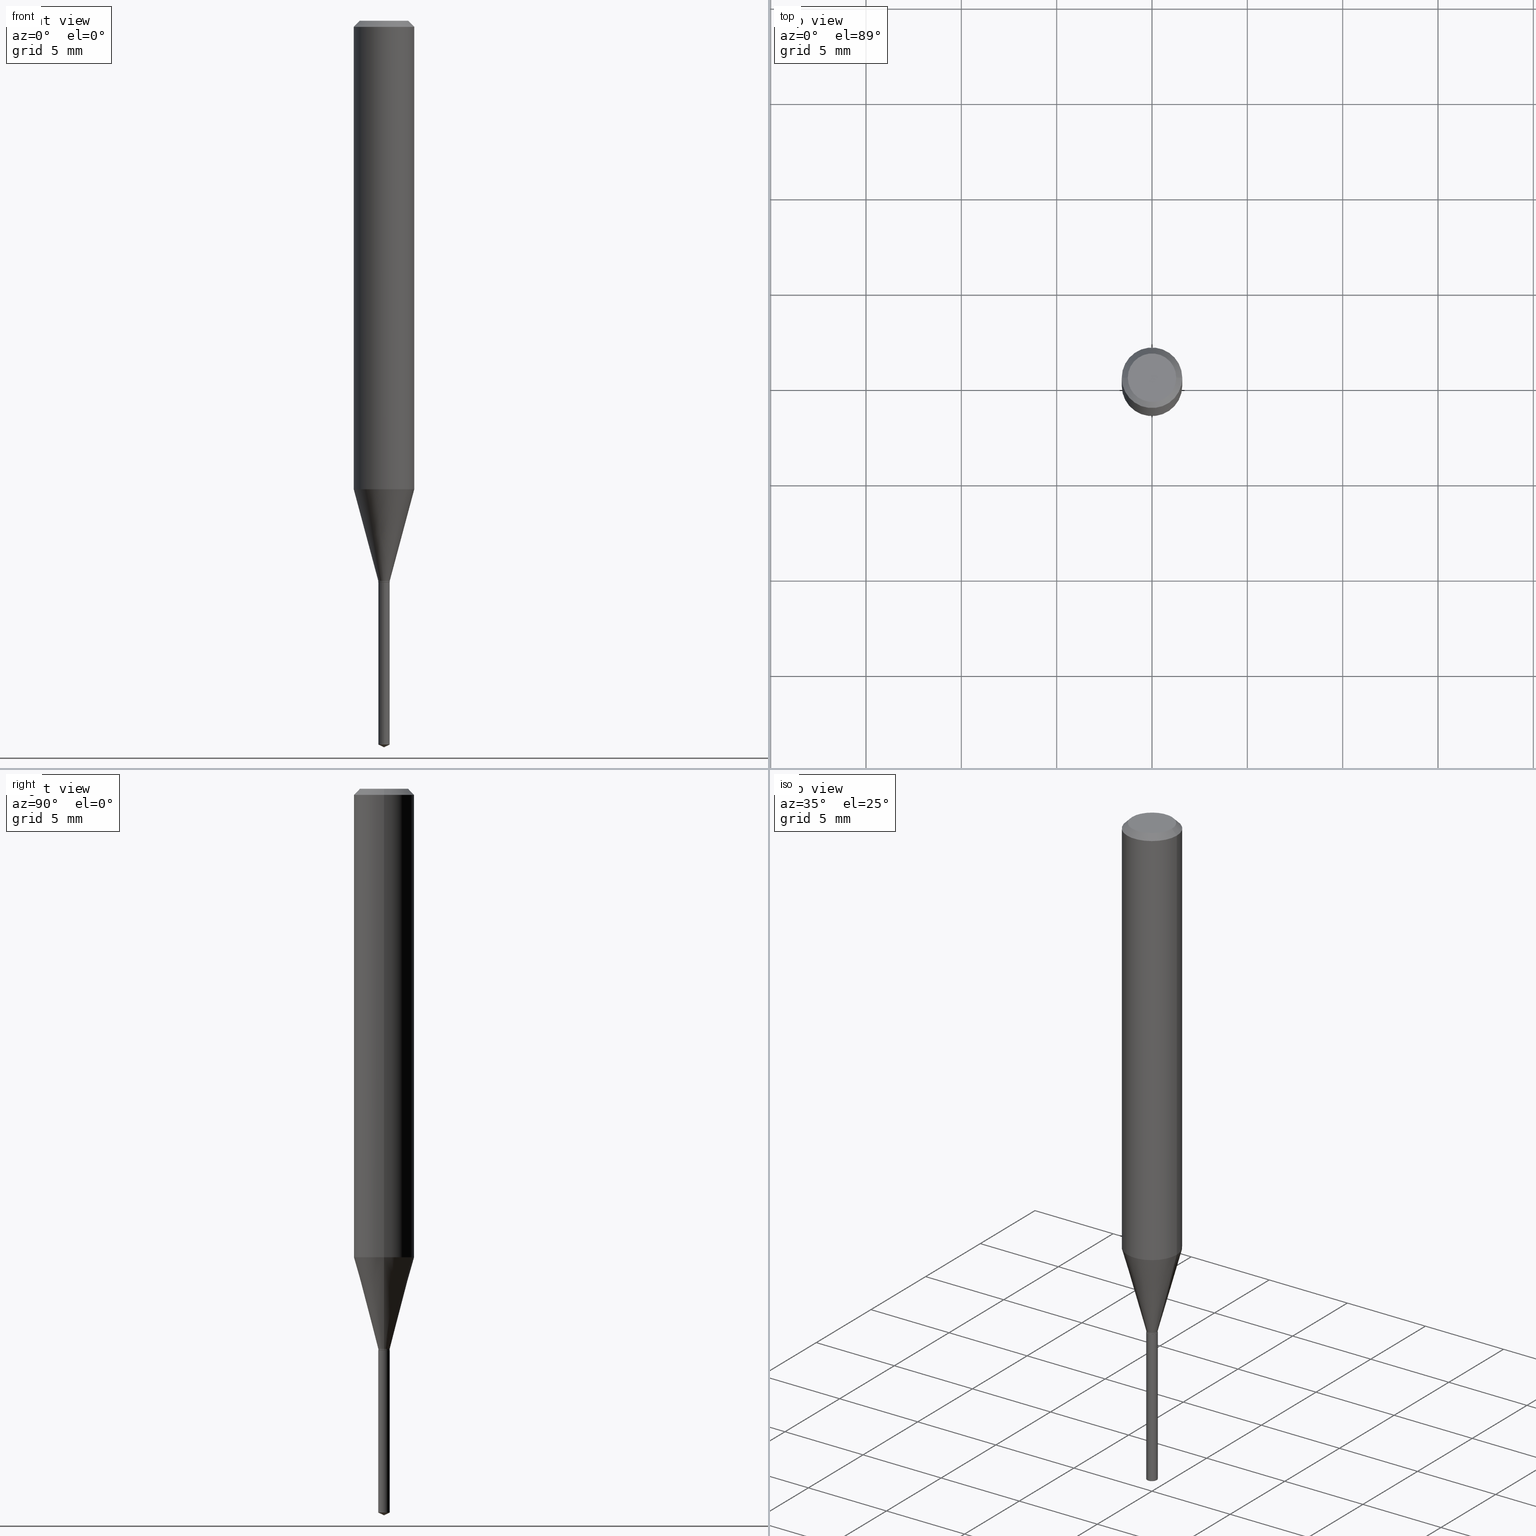
[diagram: canonical four-view strip — front | top / right | iso, engineering-drawing reading convention]
A machine part, canonical four-view strip (front | top / right | iso — engineering-drawing reading convention). The complete STEP part file that produces these views, byte-faithful:
ISO-10303-21;
HEADER;
FILE_DESCRIPTION (( 'STEP AP203' ),
    '1' );
FILE_NAME ('07283.STEP',
    '2024-04-23T20:12:05',
    ( '' ),
    ( '' ),
    'SwSTEP 2.0',
    'SolidWorks 2023',
    '' );
FILE_SCHEMA (( 'CONFIG_CONTROL_DESIGN' ));
ENDSEC;

DATA;
#1 = ADVANCED_FACE ( 'NONE', ( #143 ), #226, .T. ) ;
#2 = CIRCLE ( 'NONE', #232, 0.06250000000000000000 ) ;
#3 = FACE_OUTER_BOUND ( 'NONE', #100, .T. ) ;
#4 = CARTESIAN_POINT ( 'NONE',  ( 3.056836007731441415E-31, -4.364351673553961684E-17, -0.01250000000000008396 ) ) ;
#5 = EDGE_CURVE ( 'NONE', #439, #21, #270, .T. ) ;
#6 = DIRECTION ( 'NONE',  ( -2.445468806185136877E-29, 3.491481338843145188E-15, 1.000000000000000000 ) ) ;
#7 = VECTOR ( 'NONE', #199, 39.37007874015748143 ) ;
#8 = EDGE_CURVE ( 'NONE', #363, #250, #422, .T. ) ;
#9 = CARTESIAN_POINT ( 'NONE',  ( 0.01130000000000000102, -4.129025831315904324E-15, -1.160000000000000142 ) ) ;
#10 = CARTESIAN_POINT ( 'NONE',  ( -0.01180000000000000146, -3.954054125552405839E-15, -1.156500000000000083 ) ) ;
#11 = PLANE ( 'NONE',  #440 ) ;
#12 = CARTESIAN_POINT ( 'NONE',  ( -9.260692260689371353E-28, 1.322272180548015906E-13, 37.87007874015748143 ) ) ;
#13 = PERSON_AND_ORGANIZATION ( #263, #408 ) ;
#14 = CIRCLE ( 'NONE', #26, 0.01130000000000000102 ) ;
#15 = CARTESIAN_POINT ( 'NONE',  ( -0.01179999999999999799, 8.384404281969180765E-17, -5.804343406500788140E-31 ) ) ;
#16 = APPROVAL_ROLE ( '' ) ;
#17 = LINE ( 'NONE', #324, #39 ) ;
#18 = ORIENTED_EDGE ( 'NONE', *, *, #68, .T. ) ;
#19 = DIRECTION ( 'NONE',  ( -0.2588190451025212391, 5.211531920934549464E-15, 0.9659258262890679791 ) ) ;
#20 = DIRECTION ( 'NONE',  ( 1.000000000000000000, -6.982962677686264344E-15, 0.000000000000000000 ) ) ;
#21 = VERTEX_POINT ( 'NONE', #346 ) ;
#22 = AXIS2_PLACEMENT_3D ( 'NONE', #385, #467, #208 ) ;
#23 = ORIENTED_EDGE ( 'NONE', *, *, #117, .T. ) ;
#24 = ORIENTED_EDGE ( 'NONE', *, *, #5, .F. ) ;
#25 = EDGE_LOOP ( 'NONE', ( #479, #131 ) ) ;
#26 = AXIS2_PLACEMENT_3D ( 'NONE', #93, #338, #310 ) ;
#27 = ORIENTED_EDGE ( 'NONE', *, *, #172, .T. ) ;
#28 = EDGE_CURVE ( 'NONE', #363, #468, #147, .T. ) ;
#29 = MANIFOLD_SOLID_BREP ( 'Body-Move/Copy2[1]', #267 ) ;
#30 = FACE_OUTER_BOUND ( 'NONE', #314, .T. ) ;
#31 = PERSON_AND_ORGANIZATION ( #263, #408 ) ;
#32 = CYLINDRICAL_SURFACE ( 'NONE', #292, 0.01179999999999999799 ) ;
#33 = CARTESIAN_POINT ( 'NONE',  ( 3.056836007731441415E-31, -4.364351673553961684E-17, -0.01250000000000008396 ) ) ;
#34 = AXIS2_PLACEMENT_3D ( 'NONE', #277, #386, #193 ) ;
#35 = APPROVAL_STATUS ( 'not_yet_approved' ) ;
#36 = ADVANCED_FACE ( 'NONE', ( #157 ), #425, .T. ) ;
#37 = DIRECTION ( 'NONE',  ( -2.445468806185136597E-29, 3.491481338843145583E-15, 1.000000000000000000 ) ) ;
#38 = EDGE_CURVE ( 'NONE', #48, #439, #14, .T. ) ;
#39 = VECTOR ( 'NONE', #130, 39.37007874015748854 ) ;
#40 = PERSON_AND_ORGANIZATION ( #263, #408 ) ;
#41 = CARTESIAN_POINT ( 'NONE',  ( 8.384404281972834178E-17, 0.01179999999999477821, -1.494497569633770784 ) ) ;
#42 = APPROVAL ( #206, 'UNSPECIFIED' ) ;
#43 = ORIENTED_EDGE ( 'NONE', *, *, #271, .T. ) ;
#44 = DIRECTION ( 'NONE',  ( -6.982962677686265133E-15, -1.000000000000000000, 0.000000000000000000 ) ) ;
#45 = DIRECTION ( 'NONE',  ( -2.445468806185136597E-29, 3.491481338843145583E-15, 1.000000000000000000 ) ) ;
#46 = PRODUCT_DEFINITION_FORMATION_WITH_SPECIFIED_SOURCE ( 'ANY', '', #369, .NOT_KNOWN. ) ;
#47 = CARTESIAN_POINT ( 'NONE',  ( -0.06250000000000000000, -1.266361353935139822E-15, -0.01250000000000008396 ) ) ;
#48 = VERTEX_POINT ( 'NONE', #261 ) ;
#49 = PERSON_AND_ORGANIZATION ( #263, #408 ) ;
#50 = AXIS2_PLACEMENT_3D ( 'NONE', #293, #81, #456 ) ;
#51 = LINE ( 'NONE', #471, #242 ) ;
#52 = DIRECTION ( 'NONE',  ( -2.445387493514530438E-29, 3.491597783215483216E-15, 1.000000000000000000 ) ) ;
#53 = ORIENTED_EDGE ( 'NONE', *, *, #379, .F. ) ;
#54 = PERSON_AND_ORGANIZATION_ROLE ( 'creator' ) ;
#55 = APPLICATION_CONTEXT ( 'configuration controlled 3d designs of mechanical parts and assemblies' ) ;
#56 = LINE ( 'NONE', #160, #204 ) ;
#57 = CC_DESIGN_PERSON_AND_ORGANIZATION_ASSIGNMENT ( #210, #356, ( #46 ) ) ;
#58 = LOCAL_TIME ( 16, 12, 5.000000000000000000, #161 ) ;
#59 = ORIENTED_EDGE ( 'NONE', *, *, #475, .T. ) ;
#60 = ORIENTED_EDGE ( 'NONE', *, *, #111, .F. ) ;
#61 = ADVANCED_FACE ( 'NONE', ( #265 ), #179, .T. ) ;
#62 = AXIS2_PLACEMENT_3D ( 'NONE', #429, #404, #328 ) ;
#63 = CARTESIAN_POINT ( 'NONE',  ( 0.000000000000000000, 0.000000000000000000, 0.000000000000000000 ) ) ;
#64 = ORIENTED_EDGE ( 'NONE', *, *, #258, .F. ) ;
#65 = FACE_OUTER_BOUND ( 'NONE', #213, .T. ) ;
#66 = ORIENTED_EDGE ( 'NONE', *, *, #172, .F. ) ;
#67 = ORIENTED_EDGE ( 'NONE', *, *, #295, .T. ) ;
#68 = EDGE_CURVE ( 'NONE', #21, #134, #114, .T. ) ;
#69 = CARTESIAN_POINT ( 'NONE',  ( 3.654719988568187442E-29, -5.218049325682291102E-15, -1.494497569633770784 ) ) ;
#70 = CONICAL_SURFACE ( 'NONE', #458, 0.01130000000000000102, 0.7853981633974098653 ) ;
#71 = CARTESIAN_POINT ( 'NONE',  ( 3.654719988568187442E-29, -5.218049325682291102E-15, -1.494497569633770784 ) ) ;
#72 = EDGE_CURVE ( 'NONE', #325, #250, #2, .T. ) ;
#73 = CARTESIAN_POINT ( 'NONE',  ( 2.835521080771666279E-29, -4.048372612388627704E-15, -1.159500000000000197 ) ) ;
#74 = AXIS2_PLACEMENT_3D ( 'NONE', #63, #142, #256 ) ;
#75 = DIRECTION ( 'NONE',  ( 1.000000000000000000, -6.982962677686267499E-15, 4.876176775795935793E-29 ) ) ;
#76 = CARTESIAN_POINT ( 'NONE',  ( 2.836743815174758520E-29, -4.050118353058049996E-15, -1.160000000000000142 ) ) ;
#77 = APPLICATION_PROTOCOL_DEFINITION ( 'international standard', 'config_control_design', 1994, #55 ) ;
#78 = ADVANCED_FACE ( 'NONE', ( #393 ), #304, .T. ) ;
#79 = AXIS2_PLACEMENT_3D ( 'NONE', #12, #469, #318 ) ;
#80 = ORIENTED_EDGE ( 'NONE', *, *, #28, .T. ) ;
#81 = DIRECTION ( 'NONE',  ( -2.445468806185136597E-29, 3.491481338843145583E-15, 1.000000000000000000 ) ) ;
#82 = FACE_OUTER_BOUND ( 'NONE', #25, .T. ) ;
#83 = LINE ( 'NONE', #284, #132 ) ;
#84 = CARTESIAN_POINT ( 'NONE',  ( 0.000000000000000000, 0.000000000000000000, 0.000000000000000000 ) ) ;
#85 = FACE_OUTER_BOUND ( 'NONE', #177, .T. ) ;
#86 = FACE_OUTER_BOUND ( 'NONE', #332, .T. ) ;
#87 = ORIENTED_EDGE ( 'NONE', *, *, #218, .F. ) ;
#88 = EDGE_CURVE ( 'NONE', #281, #102, #83, .T. ) ;
#89 = FACE_OUTER_BOUND ( 'NONE', #486, .T. ) ;
#90 = CARTESIAN_POINT ( 'NONE',  ( -0.01130000000000000102, -3.969827023917158052E-15, -1.160000000000000142 ) ) ;
#91 = ORIENTED_EDGE ( 'NONE', *, *, #111, .T. ) ;
#92 = CLOSED_SHELL ( 'NONE', ( #308, #198, #251, #1, #341, #411, #146, #154, #61, #289, #266, #78 ) ) ;
#93 = CARTESIAN_POINT ( 'NONE',  ( 2.836743815174758520E-29, -4.050118353058049996E-15, -1.160000000000000142 ) ) ;
#94 = CARTESIAN_POINT ( 'NONE',  ( 2.836743815174758520E-29, -4.050118353058049996E-15, -1.160000000000000142 ) ) ;
#95 = CARTESIAN_POINT ( 'NONE',  ( 1.946643104841063088E-47, -2.779290439833033990E-33, -7.960204194457798443E-19 ) ) ;
#96 = ORIENTED_EDGE ( 'NONE', *, *, #72, .T. ) ;
#97 = DIRECTION ( 'NONE',  ( -2.445468806185136877E-29, 3.491481338843145188E-15, 1.000000000000000000 ) ) ;
#98 = ADVANCED_FACE ( 'NONE', ( #86 ), #280, .T. ) ;
#99 = CARTESIAN_POINT ( 'NONE',  ( -9.260692260689371353E-28, 1.322272180548015906E-13, 37.87007874015748143 ) ) ;
#100 = EDGE_LOOP ( 'NONE', ( #18, #362, #124, #53 ) ) ;
#101 = CALENDAR_DATE ( 2024, 23, 4 ) ;
#102 = VERTEX_POINT ( 'NONE', #127 ) ;
#103 = CIRCLE ( 'NONE', #375, 0.06250000000000012490 ) ;
#104 = ORIENTED_EDGE ( 'NONE', *, *, #436, .F. ) ;
#105 = AXIS2_PLACEMENT_3D ( 'NONE', #119, #273, #426 ) ;
#106 = ORIENTED_EDGE ( 'NONE', *, *, #38, .F. ) ;
#107 = ORIENTED_EDGE ( 'NONE', *, *, #484, .F. ) ;
#108 = AXIS2_PLACEMENT_3D ( 'NONE', #99, #52, #399 ) ;
#109 = CIRCLE ( 'NONE', #105, 0.06250000000000012490 ) ;
#110 = FACE_OUTER_BOUND ( 'NONE', #441, .T. ) ;
#111 = EDGE_CURVE ( 'NONE', #48, #134, #235, .T. ) ;
#112 = CARTESIAN_POINT ( 'NONE',  ( 0.000000000000000000, 0.000000000000000000, 0.000000000000000000 ) ) ;
#113 = DIRECTION ( 'NONE',  ( -2.445387493514530158E-29, 3.491597783215483216E-15, 1.000000000000000000 ) ) ;
#114 = CIRCLE ( 'NONE', #351, 0.01179999999999999799 ) ;
#115 = CARTESIAN_POINT ( 'NONE',  ( 0.01130000000000000102, -4.129025831315904324E-15, -1.160000000000000142 ) ) ;
#116 = DATE_AND_TIME ( #118, #420 ) ;
#117 = EDGE_CURVE ( 'NONE', #444, #288, #274, .T. ) ;
#118 = CALENDAR_DATE ( 2024, 23, 4 ) ;
#119 = CARTESIAN_POINT ( 'NONE',  ( 2.365465353019618098E-29, -3.377257610834867681E-15, -0.9672850240562579360 ) ) ;
#120 = FACE_OUTER_BOUND ( 'NONE', #248, .T. ) ;
#121 = AXIS2_PLACEMENT_3D ( 'NONE', #69, #370, #216 ) ;
#122 = EDGE_LOOP ( 'NONE', ( #389, #397, #138 ) ) ;
#123 = LINE ( 'NONE', #15, #252 ) ;
#124 = ORIENTED_EDGE ( 'NONE', *, *, #159, .F. ) ;
#125 = DATE_TIME_ROLE ( 'creation_date' ) ;
#126 = CARTESIAN_POINT ( 'NONE',  ( 0.01180000000000000146, -4.120297127968796017E-15, -1.156500000000000083 ) ) ;
#127 = CARTESIAN_POINT ( 'NONE',  ( 8.384404281972840340E-17, 0.01179999999999594915, -1.160000000000000142 ) ) ;
#128 = DATE_AND_TIME ( #472, #360 ) ;
#129 = DIRECTION ( 'NONE',  ( -2.445468806185136877E-29, 3.491481338843145188E-15, 1.000000000000000000 ) ) ;
#130 = DIRECTION ( 'NONE',  ( -6.328713451373318891E-15, -0.9063077870366412769, 0.4226182617407178155 ) ) ;
#131 = ORIENTED_EDGE ( 'NONE', *, *, #484, .T. ) ;
#132 = VECTOR ( 'NONE', #169, 39.37007874015748143 ) ;
#133 = CARTESIAN_POINT ( 'NONE',  ( 0.000000000000000000, 0.000000000000000000, 0.000000000000000000 ) ) ;
#134 = VERTEX_POINT ( 'NONE', #462 ) ;
#135 = APPROVAL ( #463, 'UNSPECIFIED' ) ;
#136 = VERTEX_POINT ( 'NONE', #354 ) ;
#137 = UNCERTAINTY_MEASURE_WITH_UNIT (LENGTH_MEASURE( 1.000000000000000082E-05 ), #383, 'distance_accuracy_value', 'NONE');
#138 = ORIENTED_EDGE ( 'NONE', *, *, #359, .F. ) ;
#139 = LOCAL_TIME ( 16, 12, 5.000000000000000000, #374 ) ;
#140 = ORIENTED_EDGE ( 'NONE', *, *, #28, .F. ) ;
#141 = EDGE_CURVE ( 'NONE', #136, #175, #17, .T. ) ;
#142 = DIRECTION ( 'NONE',  ( -2.445468806185136597E-29, 3.491481338843145583E-15, 1.000000000000000000 ) ) ;
#143 = FACE_OUTER_BOUND ( 'NONE', #435, .T. ) ;
#144 = CC_DESIGN_PERSON_AND_ORGANIZATION_ASSIGNMENT ( #395, #54, ( #46 ) ) ;
#145 = DIRECTION ( 'NONE',  ( 1.000000000000000000, -6.982962677686258033E-15, 0.000000000000000000 ) ) ;
#146 = ADVANCED_FACE ( 'NONE', ( #120 ), #298, .T. ) ;
#147 = CIRCLE ( 'NONE', #34, 0.04999999999999999584 ) ;
#148 = AXIS2_PLACEMENT_3D ( 'NONE', #94, #348, #44 ) ;
#149 = DIRECTION ( 'NONE',  ( -2.445468806185136877E-29, 3.491481338843145188E-15, 1.000000000000000000 ) ) ;
#150 = DIRECTION ( 'NONE',  ( 2.445468806185136597E-29, -3.491481338843145583E-15, -1.000000000000000000 ) ) ;
#151 = DIRECTION ( 'NONE',  ( -2.445468806185136597E-29, 3.491481338843145583E-15, 1.000000000000000000 ) ) ;
#152 = CC_DESIGN_SECURITY_CLASSIFICATION ( #349, ( #46 ) ) ;
#153 = CIRCLE ( 'NONE', #433, 0.06250000000000000000 ) ;
#154 = ADVANCED_FACE ( 'NONE', ( #65 ), #489, .T. ) ;
#155 = CARTESIAN_POINT ( 'NONE',  ( -0.06250000000000000000, 3.927916506198520587E-16, -0.01250000000000008396 ) ) ;
#156 = CARTESIAN_POINT ( 'NONE',  ( 2.836743815174758520E-29, -4.050118353058049996E-15, -1.160000000000000142 ) ) ;
#157 = FACE_OUTER_BOUND ( 'NONE', #122, .T. ) ;
#158 =( LENGTH_UNIT ( ) NAMED_UNIT ( * ) SI_UNIT ( $, .METRE. ) );
#159 = EDGE_CURVE ( 'NONE', #288, #444, #335, .T. ) ;
#160 = CARTESIAN_POINT ( 'NONE',  ( -0.06250000000000006939, 4.440892098500631092E-16, -3.074334431409319267E-30 ) ) ;
#161 = COORDINATED_UNIVERSAL_TIME_OFFSET ( 5, 0, .BEHIND. ) ;
#162 = DIRECTION ( 'NONE',  ( 0.7071067811865453523, -7.319954787623248157E-15, -0.7071067811865496822 ) ) ;
#163 = COORDINATED_UNIVERSAL_TIME_OFFSET ( 5, 0, .BEHIND. ) ;
#164 = AXIS2_PLACEMENT_3D ( 'NONE', #414, #300, #454 ) ;
#165 = DIRECTION ( 'NONE',  ( -2.438088387897960049E-29, 3.491481338843145188E-15, 1.000000000000000000 ) ) ;
#166 = EDGE_LOOP ( 'NONE', ( #80, #330 ) ) ;
#167 = APPLICATION_PROTOCOL_DEFINITION ( 'international standard', 'config_control_design', 1994, #286 ) ;
#168 = LINE ( 'NONE', #126, #417 ) ;
#169 = DIRECTION ( 'NONE',  ( -2.445387493514530158E-29, 3.491597783215483216E-15, 1.000000000000000000 ) ) ;
#170 = ORIENTED_EDGE ( 'NONE', *, *, #379, .T. ) ;
#171 = CIRCLE ( 'NONE', #445, 0.04999999999999999584 ) ;
#172 = EDGE_CURVE ( 'NONE', #281, #175, #392, .T. ) ;
#173 = DIRECTION ( 'NONE',  ( 1.000000000000000000, -6.982962677686254878E-15, 0.000000000000000000 ) ) ;
#174 = ORIENTED_EDGE ( 'NONE', *, *, #271, .F. ) ;
#175 = VERTEX_POINT ( 'NONE', #372 ) ;
#176 = ADVANCED_FACE ( 'NONE', ( #30 ), #326, .T. ) ;
#177 = EDGE_LOOP ( 'NONE', ( #285, #91, #255, #24 ) ) ;
#178 = LOCAL_TIME ( 16, 12, 5.000000000000000000, #481 ) ;
#179 = CONICAL_SURFACE ( 'NONE', #331, 0.06250000000000000000, 0.7853981633974452814 ) ;
#180 = ORIENTED_EDGE ( 'NONE', *, *, #475, .F. ) ;
#181 = SECURITY_CLASSIFICATION_LEVEL ( 'unclassified' ) ;
#182 = CIRCLE ( 'NONE', #378, 0.01180000000000000146 ) ;
#183 = EDGE_CURVE ( 'NONE', #175, #220, #227, .T. ) ;
#184 = FACE_OUTER_BOUND ( 'NONE', #321, .T. ) ;
#185 = CARTESIAN_POINT ( 'NONE',  ( -0.01180000000000000146, -3.959291347560671139E-15, -1.156500000000000083 ) ) ;
#186 = CIRCLE ( 'NONE', #382, 0.01180000000000000146 ) ;
#187 = CYLINDRICAL_SURFACE ( 'NONE', #164, 0.01179999999999999799 ) ;
#188 = AXIS2_PLACEMENT_3D ( 'NONE', #84, #237, #423 ) ;
#189 = CARTESIAN_POINT ( 'NONE',  ( 0.06250000000000006939, -4.364351673553921624E-16, 3.047610484872463374E-30 ) ) ;
#190 = DIRECTION ( 'NONE',  ( -2.445387493514530438E-29, 3.491597783215483216E-15, 1.000000000000000000 ) ) ;
#191 = VECTOR ( 'NONE', #241, 39.37007874015748854 ) ;
#192 = ORIENTED_EDGE ( 'NONE', *, *, #233, .F. ) ;
#193 = DIRECTION ( 'NONE',  ( 1.000000000000000000, -6.982962677686265922E-15, 4.875957971899673662E-29 ) ) ;
#194 = CALENDAR_DATE ( 2024, 23, 4 ) ;
#195 = MANIFOLD_SOLID_BREP ( 'Body-Move/Copy2[2]', #92 ) ;
#196 = DIRECTION ( 'NONE',  ( -2.445468806185136597E-29, 3.491481338843145583E-15, 1.000000000000000000 ) ) ;
#197 = ORIENTED_EDGE ( 'NONE', *, *, #72, .F. ) ;
#198 = ADVANCED_FACE ( 'NONE', ( #184 ), #464, .T. ) ;
#199 = DIRECTION ( 'NONE',  ( -0.7071067811865453523, 2.468850131082234184E-15, -0.7071067811865496822 ) ) ;
#200 = VECTOR ( 'NONE', #19, 39.37007874015748854 ) ;
#201 = DIRECTION ( 'NONE',  ( 1.000000000000000000, -6.982962677686266711E-15, 4.876176775795935793E-29 ) ) ;
#202 = APPROVAL_DATE_TIME ( #116, #135 ) ;
#203 = CYLINDRICAL_SURFACE ( 'NONE', #221, 0.06250000000000006939 ) ;
#204 = VECTOR ( 'NONE', #129, 39.37007874015748143 ) ;
#205 = ORIENTED_EDGE ( 'NONE', *, *, #183, .F. ) ;
#206 = APPROVAL_STATUS ( 'not_yet_approved' ) ;
#207 = CARTESIAN_POINT ( 'NONE',  ( -8.239895959666957699E-17, -0.01180000000000405204, -1.160000000000000142 ) ) ;
#208 = DIRECTION ( 'NONE',  ( 1.000000000000000000, -6.982962677686258033E-15, 0.000000000000000000 ) ) ;
#209 = EDGE_LOOP ( 'NONE', ( #104, #106 ) ) ;
#210 = PERSON_AND_ORGANIZATION ( #263, #408 ) ;
#211 = CARTESIAN_POINT ( 'NONE',  ( 3.893286209682126177E-47, -5.558580879666067980E-33, -1.592040838891559689E-18 ) ) ;
#212 = EDGE_CURVE ( 'NONE', #468, #325, #51, .T. ) ;
#213 = EDGE_LOOP ( 'NONE', ( #174, #490, #421, #409 ) ) ;
#214 = CC_DESIGN_PERSON_AND_ORGANIZATION_ASSIGNMENT ( #13, #352, ( #466 ) ) ;
#215 = ORIENTED_EDGE ( 'NONE', *, *, #218, .T. ) ;
#216 = DIRECTION ( 'NONE',  ( -6.982962677686265133E-15, -1.000000000000000000, 0.000000000000000000 ) ) ;
#217 = ORIENTED_EDGE ( 'NONE', *, *, #141, .T. ) ;
#218 = EDGE_CURVE ( 'NONE', #288, #239, #168, .T. ) ;
#219 = ORIENTED_EDGE ( 'NONE', *, *, #8, .F. ) ;
#220 = VERTEX_POINT ( 'NONE', #207 ) ;
#221 = AXIS2_PLACEMENT_3D ( 'NONE', #133, #384, #201 ) ;
#222 = DIMENSIONAL_EXPONENTS ( 1.000000000000000000, 0.000000000000000000, 0.000000000000000000, 0.000000000000000000, 0.000000000000000000, 0.000000000000000000, 0.000000000000000000 ) ;
#223 = CARTESIAN_POINT ( 'NONE',  ( 2.828184674353110591E-29, -4.037898168372097893E-15, -1.156500000000000083 ) ) ;
#224 = DATE_TIME_ROLE ( 'classification_date' ) ;
#225 = DIRECTION ( 'NONE',  ( 1.000000000000000000, -6.982962677686259611E-15, 0.000000000000000000 ) ) ;
#226 = CONICAL_SURFACE ( 'NONE', #50, 0.01180000000000000146, 0.2617993877991499629 ) ;
#227 = LINE ( 'NONE', #376, #476 ) ;
#228 = DIRECTION ( 'NONE',  ( -2.445468806185136597E-29, 3.491481338843145583E-15, 1.000000000000000000 ) ) ;
#229 = EDGE_CURVE ( 'NONE', #250, #325, #153, .T. ) ;
#230 = EDGE_CURVE ( 'NONE', #220, #102, #186, .T. ) ;
#231 = EDGE_LOOP ( 'NONE', ( #192, #67, #170, #488 ) ) ;
#232 = AXIS2_PLACEMENT_3D ( 'NONE', #33, #37, #478 ) ;
#233 = EDGE_CURVE ( 'NONE', #134, #444, #123, .T. ) ;
#234 = CARTESIAN_POINT ( 'NONE',  ( 0.04999999999999999584, -4.077247707424184705E-16, -1.592040838888913461E-18 ) ) ;
#235 = LINE ( 'NONE', #90, #191 ) ;
#236 = DIRECTION ( 'NONE',  ( 0.7071067811865202613, -2.468850131081971887E-15, 0.7071067811865746622 ) ) ;
#237 = DIRECTION ( 'NONE',  ( 0.000000000000000000, 0.000000000000000000, 1.000000000000000000 ) ) ;
#238 = CARTESIAN_POINT ( 'NONE',  ( 0.06250000000000000000, -4.800786840909313294E-16, -0.01250000000000008396 ) ) ;
#239 = VERTEX_POINT ( 'NONE', #278 ) ;
#240 = CC_DESIGN_APPROVAL ( #371, ( #349 ) ) ;
#241 = DIRECTION ( 'NONE',  ( -0.7071067811865202613, 7.493145998870254764E-15, 0.7071067811865746622 ) ) ;
#242 = VECTOR ( 'NONE', #162, 39.37007874015748143 ) ;
#243 = APPROVAL_DATE_TIME ( #128, #42 ) ;
#244 = DIRECTION ( 'NONE',  ( 2.438088387897960049E-29, -3.491481338843145188E-15, -1.000000000000000000 ) ) ;
#245 = ORIENTED_EDGE ( 'NONE', *, *, #212, .T. ) ;
#246 = DIRECTION ( 'NONE',  ( -2.445468806185136597E-29, 3.491481338843145583E-15, 1.000000000000000000 ) ) ;
#247 = EDGE_CURVE ( 'NONE', #468, #363, #171, .T. ) ;
#248 = EDGE_LOOP ( 'NONE', ( #180, #23, #215, #442 ) ) ;
#249 = DIRECTION ( 'NONE',  ( -6.982962677686265133E-15, -1.000000000000000000, 0.000000000000000000 ) ) ;
#250 = VERTEX_POINT ( 'NONE', #47 ) ;
#251 = ADVANCED_FACE ( 'NONE', ( #89 ), #203, .T. ) ;
#252 = VECTOR ( 'NONE', #97, 39.37007874015748143 ) ;
#253 = APPROVAL_ROLE ( '' ) ;
#254 = ORIENTED_EDGE ( 'NONE', *, *, #183, .T. ) ;
#255 = ORIENTED_EDGE ( 'NONE', *, *, #68, .F. ) ;
#256 = DIRECTION ( 'NONE',  ( 1.000000000000000000, -6.982962677686266711E-15, 4.876176775795935793E-29 ) ) ;
#257 = LINE ( 'NONE', #189, #443 ) ;
#258 = EDGE_CURVE ( 'NONE', #239, #367, #103, .T. ) ;
#259 = PERSON_AND_ORGANIZATION ( #263, #408 ) ;
#260 = VECTOR ( 'NONE', #149, 39.37007874015748143 ) ;
#261 = CARTESIAN_POINT ( 'NONE',  ( -0.01130000000000000102, -3.967177796743046850E-15, -1.160000000000000142 ) ) ;
#262 = CIRCLE ( 'NONE', #148, 0.01180000000000000146 ) ;
#263 = PERSON ( 'UNSPECIFIED', 'UNSPECIFIED', 'UNSPECIFIED', ('UNSPECIFIED'), ('UNSPECIFIED'), ('UNSPECIFIED') ) ;
#264 = CYLINDRICAL_SURFACE ( 'NONE', #483, 0.01180000000000000146 ) ;
#265 = FACE_OUTER_BOUND ( 'NONE', #290, .T. ) ;
#266 = ADVANCED_FACE ( 'NONE', ( #353 ), #11, .F. ) ;
#267 = CLOSED_SHELL ( 'NONE', ( #176, #36, #98, #460, #333 ) ) ;
#268 = PRODUCT_RELATED_PRODUCT_CATEGORY ( 'detail', '', ( #369 ) ) ;
#269 = DIRECTION ( 'NONE',  ( 6.982962677686265922E-15, 1.000000000000000000, -3.491597783215483216E-15 ) ) ;
#270 = LINE ( 'NONE', #9, #453 ) ;
#271 = EDGE_CURVE ( 'NONE', #367, #250, #56, .T. ) ;
#272 = LENGTH_MEASURE_WITH_UNIT ( LENGTH_MEASURE( 0.02539999999999999897 ), #158 );
#273 = DIRECTION ( 'NONE',  ( -2.445468806185136597E-29, 3.491481338843145583E-15, 1.000000000000000000 ) ) ;
#274 = CIRCLE ( 'NONE', #22, 0.01180000000000000146 ) ;
#275 = CARTESIAN_POINT ( 'NONE',  ( 2.836743815174758520E-29, -4.050118353058049996E-15, -1.160000000000000142 ) ) ;
#276 = PLANE ( 'NONE',  #449 ) ;
#277 = CARTESIAN_POINT ( 'NONE',  ( 3.893286209682126177E-47, -5.558580879666067980E-33, -1.592040838891559689E-18 ) ) ;
#278 = CARTESIAN_POINT ( 'NONE',  ( 0.06250000000000013878, -3.813692778190260139E-15, -0.9672850240562579360 ) ) ;
#279 = CARTESIAN_POINT ( 'NONE',  ( 2.365465353019618098E-29, -3.377257610834867681E-15, -0.9672850240562579360 ) ) ;
#280 = CONICAL_SURFACE ( 'NONE', #108, 84.42940631927025663, 1.134464013796297355 ) ;
#281 = VERTEX_POINT ( 'NONE', #41 ) ;
#282 = CC_DESIGN_DATE_AND_TIME_ASSIGNMENT ( #470, #125, ( #466 ) ) ;
#283 = DIRECTION ( 'NONE',  ( -2.445468806185136597E-29, 3.491481338843145583E-15, 1.000000000000000000 ) ) ;
#284 = CARTESIAN_POINT ( 'NONE',  ( 8.384404281972018200E-17, 0.01179999999999594915, -1.160000000000000142 ) ) ;
#285 = ORIENTED_EDGE ( 'NONE', *, *, #436, .T. ) ;
#286 = APPLICATION_CONTEXT ( 'configuration controlled 3d designs of mechanical parts and assemblies' ) ;
#287 = DIRECTION ( 'NONE',  ( -2.445387493514530438E-29, 3.491597783215483216E-15, 1.000000000000000000 ) ) ;
#288 = VERTEX_POINT ( 'NONE', #428 ) ;
#289 = ADVANCED_FACE ( 'NONE', ( #357 ), #434, .F. ) ;
#290 = EDGE_LOOP ( 'NONE', ( #459, #140, #406, #291 ) ) ;
#291 = ORIENTED_EDGE ( 'NONE', *, *, #229, .T. ) ;
#292 = AXIS2_PLACEMENT_3D ( 'NONE', #112, #418, #75 ) ;
#293 = CARTESIAN_POINT ( 'NONE',  ( 2.828184674353110591E-29, -4.037898168372097893E-15, -1.156500000000000083 ) ) ;
#294 = PERSON_AND_ORGANIZATION_ROLE ( 'classification_officer' ) ;
#295 = EDGE_CURVE ( 'NONE', #134, #21, #337, .T. ) ;
#296 = DIRECTION ( 'NONE',  ( -2.445468806185136597E-29, 3.491481338843145583E-15, 1.000000000000000000 ) ) ;
#297 = CALENDAR_DATE ( 2024, 23, 4 ) ;
#298 = CONICAL_SURFACE ( 'NONE', #62, 0.01180000000000000146, 0.2617993877991499629 ) ;
#299 = CARTESIAN_POINT ( 'NONE',  ( -0.06250000000000013878, -2.933168400984803882E-15, -0.9672850240562579360 ) ) ;
#300 = DIRECTION ( 'NONE',  ( -2.445468806185136597E-29, 3.491481338843145583E-15, 1.000000000000000000 ) ) ;
#301 = CARTESIAN_POINT ( 'NONE',  ( -0.04999999999999999584, 3.709698922520826725E-16, -1.592040838894077649E-18 ) ) ;
#302 = DIRECTION ( 'NONE',  ( -1.000000000000000000, 6.982962677686266711E-15, 0.000000000000000000 ) ) ;
#303 = CARTESIAN_POINT ( 'NONE',  ( 2.836743815174758520E-29, -4.050118353058049996E-15, -1.160000000000000142 ) ) ;
#304 = CONICAL_SURFACE ( 'NONE', #340, 0.01130000000000000102, 0.7853981633974098653 ) ;
#305 = LINE ( 'NONE', #448, #260 ) ;
#306 = AXIS2_PLACEMENT_3D ( 'NONE', #303, #151, #410 ) ;
#307 = PERSON_AND_ORGANIZATION ( #263, #408 ) ;
#308 = ADVANCED_FACE ( 'NONE', ( #85 ), #70, .T. ) ;
#309 = DIRECTION ( 'NONE',  ( 1.000000000000000000, -6.982962677686259611E-15, 0.000000000000000000 ) ) ;
#310 = DIRECTION ( 'NONE',  ( 1.000000000000000000, -6.982962677686254878E-15, 0.000000000000000000 ) ) ;
#311 = MECHANICAL_CONTEXT ( 'NONE', #286, 'mechanical' ) ;
#312 = ADVANCED_BREP_SHAPE_REPRESENTATION ( '07283', ( #29, #195, #188 ), #450 ) ;
#313 = CARTESIAN_POINT ( 'NONE',  ( 2.836743815174758520E-29, -4.050118353058049996E-15, -1.160000000000000142 ) ) ;
#314 = EDGE_LOOP ( 'NONE', ( #380, #482, #474, #205 ) ) ;
#315 = CARTESIAN_POINT ( 'NONE',  ( 2.836743815174758520E-29, -4.050118353058049996E-15, -1.160000000000000142 ) ) ;
#316 = CARTESIAN_POINT ( 'NONE',  ( 2.836743815174758520E-29, -4.050118353058049996E-15, -1.160000000000000142 ) ) ;
#317 = EDGE_CURVE ( 'NONE', #367, #239, #109, .T. ) ;
#318 = DIRECTION ( 'NONE',  ( -6.982962677686266711E-15, -1.000000000000000000, 3.520397390770624264E-15 ) ) ;
#319 = DIRECTION ( 'NONE',  ( -6.982962677686265133E-15, -1.000000000000000000, 0.000000000000000000 ) ) ;
#320 = DIRECTION ( 'NONE',  ( 1.000000000000000000, -6.982962677686265922E-15, 4.876176775795935793E-29 ) ) ;
#321 = EDGE_LOOP ( 'NONE', ( #329, #245, #96, #219 ) ) ;
#322 = COORDINATED_UNIVERSAL_TIME_OFFSET ( 5, 0, .BEHIND. ) ;
#323 = DIRECTION ( 'NONE',  ( 1.000000000000000000, -6.982962677686265922E-15, 4.875957971899673662E-29 ) ) ;
#324 = CARTESIAN_POINT ( 'NONE',  ( 3.668081240271795657E-29, -5.237396674823225021E-15, -1.500000000000000222 ) ) ;
#325 = VERTEX_POINT ( 'NONE', #238 ) ;
#326 = CYLINDRICAL_SURFACE ( 'NONE', #401, 0.01180000000000000146 ) ;
#327 = ORIENTED_EDGE ( 'NONE', *, *, #88, .F. ) ;
#328 = DIRECTION ( 'NONE',  ( 1.000000000000000000, -6.982962677686258033E-15, 0.000000000000000000 ) ) ;
#329 = ORIENTED_EDGE ( 'NONE', *, *, #247, .F. ) ;
#330 = ORIENTED_EDGE ( 'NONE', *, *, #247, .T. ) ;
#331 = AXIS2_PLACEMENT_3D ( 'NONE', #415, #377, #413 ) ;
#332 = EDGE_LOOP ( 'NONE', ( #342, #217, #66 ) ) ;
#333 = ADVANCED_FACE ( 'NONE', ( #82 ), #276, .F. ) ;
#334 = APPROVAL_PERSON_ORGANIZATION ( #307, #135, #387 ) ;
#335 = CIRCLE ( 'NONE', #361, 0.01180000000000000146 ) ;
#336 = CARTESIAN_POINT ( 'NONE',  ( 3.668271539865044995E-29, -5.237126523879400797E-15, -1.500000000000000222 ) ) ;
#337 = CIRCLE ( 'NONE', #368, 0.01179999999999999799 ) ;
#338 = DIRECTION ( 'NONE',  ( -2.445468806185136597E-29, 3.491481338843145583E-15, 1.000000000000000000 ) ) ;
#339 = LINE ( 'NONE', #336, #344 ) ;
#340 = AXIS2_PLACEMENT_3D ( 'NONE', #316, #45, #173 ) ;
#341 = ADVANCED_FACE ( 'NONE', ( #3 ), #187, .T. ) ;
#342 = ORIENTED_EDGE ( 'NONE', *, *, #407, .F. ) ;
#343 = DIRECTION ( 'NONE',  ( -6.982962677686265133E-15, -1.000000000000000000, 0.000000000000000000 ) ) ;
#344 = VECTOR ( 'NONE', #457, 39.37007874015748854 ) ;
#345 = CC_DESIGN_PERSON_AND_ORGANIZATION_ASSIGNMENT ( #259, #294, ( #349 ) ) ;
#346 = CARTESIAN_POINT ( 'NONE',  ( 0.01179999999999999799, -4.130771571985325827E-15, -1.159500000000000197 ) ) ;
#347 = DIRECTION ( 'NONE',  ( -2.445387493514530438E-29, 3.491597783215483216E-15, 1.000000000000000000 ) ) ;
#348 = DIRECTION ( 'NONE',  ( -2.445387493514530438E-29, 3.491597783215483216E-15, 1.000000000000000000 ) ) ;
#349 = SECURITY_CLASSIFICATION ( '', '', #181 ) ;
#350 = DIRECTION ( 'NONE',  ( -2.445387493514530438E-29, 3.491597783215483216E-15, 1.000000000000000000 ) ) ;
#351 = AXIS2_PLACEMENT_3D ( 'NONE', #73, #228, #225 ) ;
#352 = PERSON_AND_ORGANIZATION_ROLE ( 'creator' ) ;
#353 = FACE_OUTER_BOUND ( 'NONE', #209, .T. ) ;
#354 = CARTESIAN_POINT ( 'NONE',  ( 3.668081240271795657E-29, -5.237396674823225021E-15, -1.500000000000000222 ) ) ;
#355 = ORIENTED_EDGE ( 'NONE', *, *, #38, .T. ) ;
#356 = PERSON_AND_ORGANIZATION_ROLE ( 'design_supplier' ) ;
#357 = FACE_OUTER_BOUND ( 'NONE', #166, .T. ) ;
#358 = ORIENTED_EDGE ( 'NONE', *, *, #159, .T. ) ;
#359 = EDGE_CURVE ( 'NONE', #175, #281, #182, .T. ) ;
#360 = LOCAL_TIME ( 16, 12, 5.000000000000000000, #163 ) ;
#361 = AXIS2_PLACEMENT_3D ( 'NONE', #223, #296, #145 ) ;
#362 = ORIENTED_EDGE ( 'NONE', *, *, #233, .T. ) ;
#363 = VERTEX_POINT ( 'NONE', #301 ) ;
#364 = CIRCLE ( 'NONE', #306, 0.01130000000000000102 ) ;
#365 = DESIGN_CONTEXT ( 'detailed design', #55, 'design' ) ;
#366 = ORIENTED_EDGE ( 'NONE', *, *, #258, .T. ) ;
#367 = VERTEX_POINT ( 'NONE', #299 ) ;
#368 = AXIS2_PLACEMENT_3D ( 'NONE', #437, #246, #309 ) ;
#369 = PRODUCT ( '07283', '07283', '', ( #311 ) ) ;
#370 = DIRECTION ( 'NONE',  ( -2.445387493514530438E-29, 3.491597783215483216E-15, 1.000000000000000000 ) ) ;
#371 = APPROVAL ( #35, 'UNSPECIFIED' ) ;
#372 = CARTESIAN_POINT ( 'NONE',  ( -8.239895959666136790E-17, -0.01180000000000521604, -1.494497569633770784 ) ) ;
#373 = DIRECTION ( 'NONE',  ( -6.982962677686265133E-15, -1.000000000000000000, 0.000000000000000000 ) ) ;
#374 = COORDINATED_UNIVERSAL_TIME_OFFSET ( 5, 0, .BEHIND. ) ;
#375 = AXIS2_PLACEMENT_3D ( 'NONE', #279, #283, #20 ) ;
#376 = CARTESIAN_POINT ( 'NONE',  ( -8.239895959666957699E-17, -0.01180000000000405204, -1.160000000000000142 ) ) ;
#377 = DIRECTION ( 'NONE',  ( 2.445468806185136597E-29, -3.491481338843145583E-15, -1.000000000000000000 ) ) ;
#378 = AXIS2_PLACEMENT_3D ( 'NONE', #71, #190, #373 ) ;
#379 = EDGE_CURVE ( 'NONE', #21, #288, #305, .T. ) ;
#380 = ORIENTED_EDGE ( 'NONE', *, *, #359, .T. ) ;
#381 =( NAMED_UNIT ( * ) PLANE_ANGLE_UNIT ( ) SI_UNIT ( $, .RADIAN. ) );
#382 = AXIS2_PLACEMENT_3D ( 'NONE', #315, #350, #343 ) ;
#383 =( CONVERSION_BASED_UNIT ( 'INCH', #272 ) LENGTH_UNIT ( ) NAMED_UNIT ( #222 ) );
#384 = DIRECTION ( 'NONE',  ( -2.445468806185136597E-29, 3.491481338843145583E-15, 1.000000000000000000 ) ) ;
#385 = CARTESIAN_POINT ( 'NONE',  ( 2.828184674353110591E-29, -4.037898168372097893E-15, -1.156500000000000083 ) ) ;
#386 = DIRECTION ( 'NONE',  ( -2.445468806185136597E-29, 3.491481338843145583E-15, 1.000000000000000000 ) ) ;
#387 = APPROVAL_ROLE ( '' ) ;
#388 = DIRECTION ( 'NONE',  ( -2.445468806185136597E-29, 3.491481338843145583E-15, 1.000000000000000000 ) ) ;
#389 = ORIENTED_EDGE ( 'NONE', *, *, #141, .F. ) ;
#390 = APPROVAL_PERSON_ORGANIZATION ( #49, #42, #16 ) ;
#391 = CC_DESIGN_APPROVAL ( #42, ( #46 ) ) ;
#392 = CIRCLE ( 'NONE', #121, 0.01180000000000000146 ) ;
#393 = FACE_OUTER_BOUND ( 'NONE', #438, .T. ) ;
#394 = APPROVAL_DATE_TIME ( #485, #371 ) ;
#395 = PERSON_AND_ORGANIZATION ( #263, #408 ) ;
#396 = DIRECTION ( 'NONE',  ( -1.000000000000000000, 6.982962677686265922E-15, -4.876176775795935793E-29 ) ) ;
#397 = ORIENTED_EDGE ( 'NONE', *, *, #407, .T. ) ;
#398 = CC_DESIGN_APPROVAL ( #135, ( #466 ) ) ;
#399 = DIRECTION ( 'NONE',  ( -6.982962677686266711E-15, -1.000000000000000000, 3.520397390770624264E-15 ) ) ;
#400 = ORIENTED_EDGE ( 'NONE', *, *, #5, .T. ) ;
#401 = AXIS2_PLACEMENT_3D ( 'NONE', #480, #287, #249 ) ;
#402 = ORIENTED_EDGE ( 'NONE', *, *, #295, .F. ) ;
#403 = PRODUCT_DEFINITION_SHAPE ( 'NONE', 'NONE',  #466 ) ;
#404 = DIRECTION ( 'NONE',  ( -2.445468806185136597E-29, 3.491481338843145583E-15, 1.000000000000000000 ) ) ;
#405 = SHAPE_DEFINITION_REPRESENTATION ( #403, #312 ) ;
#406 = ORIENTED_EDGE ( 'NONE', *, *, #8, .T. ) ;
#407 = EDGE_CURVE ( 'NONE', #136, #281, #339, .T. ) ;
#408 = ORGANIZATION ( 'UNSPECIFIED', 'UNSPECIFIED', '' ) ;
#409 = ORIENTED_EDGE ( 'NONE', *, *, #229, .F. ) ;
#410 = DIRECTION ( 'NONE',  ( 1.000000000000000000, -6.982962677686254878E-15, 0.000000000000000000 ) ) ;
#411 = ADVANCED_FACE ( 'NONE', ( #451 ), #32, .T. ) ;
#412 = DIRECTION ( 'NONE',  ( 2.445387493514530158E-29, -3.491597783215483216E-15, -1.000000000000000000 ) ) ;
#413 = DIRECTION ( 'NONE',  ( -1.000000000000000000, 6.982962677686266711E-15, 0.000000000000000000 ) ) ;
#414 = CARTESIAN_POINT ( 'NONE',  ( 0.000000000000000000, 0.000000000000000000, 0.000000000000000000 ) ) ;
#415 = CARTESIAN_POINT ( 'NONE',  ( 3.056836007731441415E-31, -4.364351673553961684E-17, -0.01250000000000008396 ) ) ;
#416 = APPROVAL_PERSON_ORGANIZATION ( #31, #371, #253 ) ;
#417 = VECTOR ( 'NONE', #465, 39.37007874015748854 ) ;
#418 = DIRECTION ( 'NONE',  ( -2.445468806185136597E-29, 3.491481338843145583E-15, 1.000000000000000000 ) ) ;
#419 = EDGE_CURVE ( 'NONE', #239, #325, #257, .T. ) ;
#420 = LOCAL_TIME ( 16, 12, 5.000000000000000000, #322 ) ;
#421 = ORIENTED_EDGE ( 'NONE', *, *, #419, .T. ) ;
#422 = LINE ( 'NONE', #155, #7 ) ;
#423 = DIRECTION ( 'NONE',  ( 1.000000000000000000, 0.000000000000000000, 0.000000000000000000 ) ) ;
#424 =( NAMED_UNIT ( * ) SI_UNIT ( $, .STERADIAN. ) SOLID_ANGLE_UNIT ( ) );
#425 = CONICAL_SURFACE ( 'NONE', #79, 84.42940631927025663, 1.134464013796297355 ) ;
#426 = DIRECTION ( 'NONE',  ( 1.000000000000000000, -6.982962677686264344E-15, 0.000000000000000000 ) ) ;
#427 = LINE ( 'NONE', #10, #200 ) ;
#428 = CARTESIAN_POINT ( 'NONE',  ( 0.01180000000000000146, -4.120297127968796017E-15, -1.156500000000000083 ) ) ;
#429 = CARTESIAN_POINT ( 'NONE',  ( 2.828184674353110591E-29, -4.037898168372097893E-15, -1.156500000000000083 ) ) ;
#430 = ORIENTED_EDGE ( 'NONE', *, *, #419, .F. ) ;
#431 = DIRECTION ( 'NONE',  ( -2.445468806185136597E-29, 3.491481338843145583E-15, 1.000000000000000000 ) ) ;
#432 = PERSON_AND_ORGANIZATION_ROLE ( 'design_owner' ) ;
#433 = AXIS2_PLACEMENT_3D ( 'NONE', #473, #388, #477 ) ;
#434 = PLANE ( 'NONE',  #487 ) ;
#435 = EDGE_LOOP ( 'NONE', ( #358, #59, #64, #87 ) ) ;
#436 = EDGE_CURVE ( 'NONE', #439, #48, #364, .T. ) ;
#437 = CARTESIAN_POINT ( 'NONE',  ( 2.835521080771666279E-29, -4.048372612388627704E-15, -1.159500000000000197 ) ) ;
#438 = EDGE_LOOP ( 'NONE', ( #60, #355, #400, #402 ) ) ;
#439 = VERTEX_POINT ( 'NONE', #115 ) ;
#440 = AXIS2_PLACEMENT_3D ( 'NONE', #156, #165, #320 ) ;
#441 = EDGE_LOOP ( 'NONE', ( #327, #27, #254, #107 ) ) ;
#442 = ORIENTED_EDGE ( 'NONE', *, *, #317, .F. ) ;
#443 = VECTOR ( 'NONE', #6, 39.37007874015748143 ) ;
#444 = VERTEX_POINT ( 'NONE', #185 ) ;
#445 = AXIS2_PLACEMENT_3D ( 'NONE', #211, #431, #323 ) ;
#446 = DATE_AND_TIME ( #297, #139 ) ;
#447 = CC_DESIGN_DATE_AND_TIME_ASSIGNMENT ( #446, #224, ( #349 ) ) ;
#448 = CARTESIAN_POINT ( 'NONE',  ( 0.01179999999999999799, -8.239895959669793900E-17, 5.753888595439203023E-31 ) ) ;
#449 = AXIS2_PLACEMENT_3D ( 'NONE', #76, #412, #269 ) ;
#450 =( GEOMETRIC_REPRESENTATION_CONTEXT ( 3 ) GLOBAL_UNCERTAINTY_ASSIGNED_CONTEXT ( ( #137 ) ) GLOBAL_UNIT_ASSIGNED_CONTEXT ( ( #383, #381, #424 ) ) REPRESENTATION_CONTEXT ( 'NONE', 'WORKASPACE' ) );
#451 = FACE_OUTER_BOUND ( 'NONE', #231, .T. ) ;
#452 = AXIS2_PLACEMENT_3D ( 'NONE', #4, #150, #302 ) ;
#453 = VECTOR ( 'NONE', #236, 39.37007874015748854 ) ;
#454 = DIRECTION ( 'NONE',  ( 1.000000000000000000, -6.982962677686267499E-15, 4.876176775795935793E-29 ) ) ;
#455 = CC_DESIGN_PERSON_AND_ORGANIZATION_ASSIGNMENT ( #40, #432, ( #369 ) ) ;
#456 = DIRECTION ( 'NONE',  ( 1.000000000000000000, -6.982962677686258033E-15, 0.000000000000000000 ) ) ;
#457 = DIRECTION ( 'NONE',  ( 6.439704144416973555E-15, 0.9063077870366443856, 0.4226182617407115427 ) ) ;
#458 = AXIS2_PLACEMENT_3D ( 'NONE', #313, #196, #461 ) ;
#459 = ORIENTED_EDGE ( 'NONE', *, *, #212, .F. ) ;
#460 = ADVANCED_FACE ( 'NONE', ( #110 ), #264, .T. ) ;
#461 = DIRECTION ( 'NONE',  ( 1.000000000000000000, -6.982962677686254878E-15, 0.000000000000000000 ) ) ;
#462 = CARTESIAN_POINT ( 'NONE',  ( -0.01179999999999999799, -3.959291347560671139E-15, -1.159500000000000197 ) ) ;
#463 = APPROVAL_STATUS ( 'not_yet_approved' ) ;
#464 = CONICAL_SURFACE ( 'NONE', #452, 0.06250000000000000000, 0.7853981633974452814 ) ;
#465 = DIRECTION ( 'NONE',  ( 0.2588190451025212391, 1.565188264969622362E-15, 0.9659258262890679791 ) ) ;
#466 = PRODUCT_DEFINITION ( 'UNKNOWN', '', #46, #365 ) ;
#467 = DIRECTION ( 'NONE',  ( -2.445468806185136597E-29, 3.491481338843145583E-15, 1.000000000000000000 ) ) ;
#468 = VERTEX_POINT ( 'NONE', #234 ) ;
#469 = DIRECTION ( 'NONE',  ( -2.445387493514530438E-29, 3.491597783215483216E-15, 1.000000000000000000 ) ) ;
#470 = DATE_AND_TIME ( #194, #58 ) ;
#471 = CARTESIAN_POINT ( 'NONE',  ( 0.06250000000000000000, -4.724246415962603826E-16, -0.01250000000000008396 ) ) ;
#472 = CALENDAR_DATE ( 2024, 23, 4 ) ;
#473 = CARTESIAN_POINT ( 'NONE',  ( 3.056836007731441415E-31, -4.364351673553961684E-17, -0.01250000000000008396 ) ) ;
#474 = ORIENTED_EDGE ( 'NONE', *, *, #230, .F. ) ;
#475 = EDGE_CURVE ( 'NONE', #444, #367, #427, .T. ) ;
#476 = VECTOR ( 'NONE', #113, 39.37007874015748143 ) ;
#477 = DIRECTION ( 'NONE',  ( 1.000000000000000000, -6.982962677686266711E-15, 0.000000000000000000 ) ) ;
#478 = DIRECTION ( 'NONE',  ( 1.000000000000000000, -6.982962677686266711E-15, 0.000000000000000000 ) ) ;
#479 = ORIENTED_EDGE ( 'NONE', *, *, #230, .T. ) ;
#480 = CARTESIAN_POINT ( 'NONE',  ( 2.836743815174758520E-29, -4.050118353058049996E-15, -1.160000000000000142 ) ) ;
#481 = COORDINATED_UNIVERSAL_TIME_OFFSET ( 5, 0, .BEHIND. ) ;
#482 = ORIENTED_EDGE ( 'NONE', *, *, #88, .T. ) ;
#483 = AXIS2_PLACEMENT_3D ( 'NONE', #275, #347, #319 ) ;
#484 = EDGE_CURVE ( 'NONE', #102, #220, #262, .T. ) ;
#485 = DATE_AND_TIME ( #101, #178 ) ;
#486 = EDGE_LOOP ( 'NONE', ( #366, #43, #197, #430 ) ) ;
#487 = AXIS2_PLACEMENT_3D ( 'NONE', #95, #244, #396 ) ;
#488 = ORIENTED_EDGE ( 'NONE', *, *, #117, .F. ) ;
#489 = CYLINDRICAL_SURFACE ( 'NONE', #74, 0.06250000000000006939 ) ;
#490 = ORIENTED_EDGE ( 'NONE', *, *, #317, .T. ) ;
ENDSEC;
END-ISO-10303-21;
